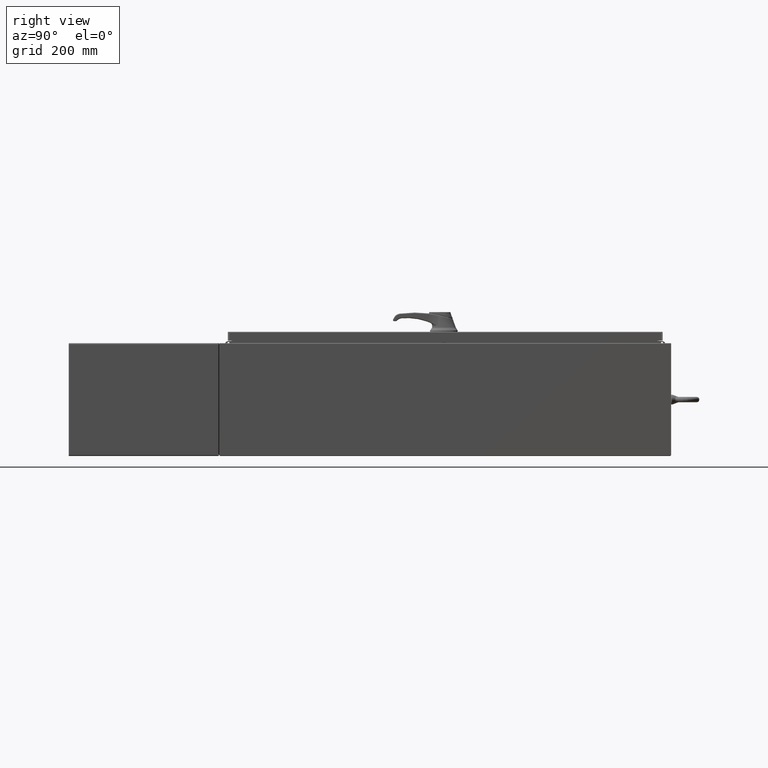
[diagram: clean part render]
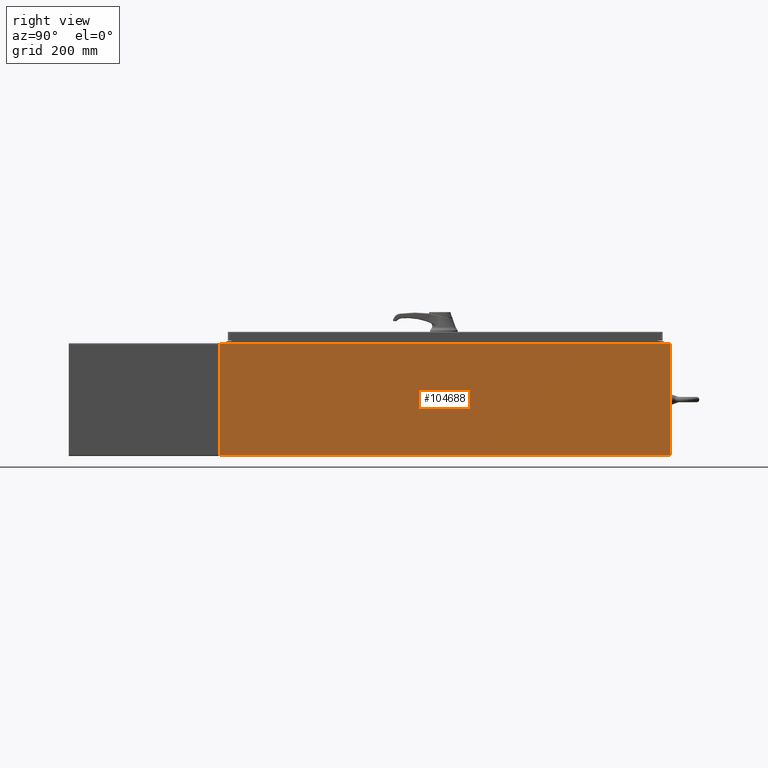
[diagram: same view with one face highlighted and labeled with its STEP entity id]
A machine part, right view. The second image highlights one B-rep face of the part: STEP entity #104688.
In plain terms, the highlighted planar face has unit normal (-1, 0, 0).
Its self-contained STEP definition (entity closure, byte-faithful):
#4818 = LINE ( 'NONE', #47509, #74518 ) ;
#9360 = LINE ( 'NONE', #83940, #90793 ) ;
#10365 = ORIENTED_EDGE ( 'NONE', *, *, #83419, .T. ) ;
#14487 = ORIENTED_EDGE ( 'NONE', *, *, #109775, .T. ) ;
#20336 = DIRECTION ( 'NONE',  ( 3.482016343714355500E-015, 0.0000000000000000000, 1.000000000000000000 ) ) ;
#20563 = EDGE_CURVE ( 'NONE', #38033, #105895, #87336, .T. ) ;
#26644 = CARTESIAN_POINT ( 'NONE',  ( 17.99999999999999600, -23.92529999999998900, 0.01299999999999897800 ) ) ;
#26656 = DIRECTION ( 'NONE',  ( -0.0000000000000000000, -1.000000000000000000, -0.0000000000000000000 ) ) ;
#28428 = CARTESIAN_POINT ( 'NONE',  ( 17.99999999999999600, 0.0000000000000000000, -6.293710784286996200E-014 ) ) ;
#28890 = DIRECTION ( 'NONE',  ( -1.000000000000000000, 0.0000000000000000000, 3.482016343714355100E-015 ) ) ;
#34466 = VERTEX_POINT ( 'NONE', #109748 ) ;
#38033 = VERTEX_POINT ( 'NONE', #42979 ) ;
#42979 = CARTESIAN_POINT ( 'NONE',  ( 17.99999999999999600, 23.92529999999998600, 0.01300000000000203200 ) ) ;
#44204 = AXIS2_PLACEMENT_3D ( 'NONE', #28428, #28890, #103115 ) ;
#45010 = ORIENTED_EDGE ( 'NONE', *, *, #70093, .T. ) ;
#47509 = CARTESIAN_POINT ( 'NONE',  ( 18.00000000000003900, 23.92529999999998900, 11.83760000000000200 ) ) ;
#52417 = DIRECTION ( 'NONE',  ( -3.482016343714355500E-015, 0.0000000000000000000, -1.000000000000000000 ) ) ;
#58137 = VECTOR ( 'NONE', #52417, 39.37007874015748100 ) ;
#59055 = VECTOR ( 'NONE', #77587, 39.37007874015748100 ) ;
#62618 = CARTESIAN_POINT ( 'NONE',  ( 17.99999999999999600, -23.92529999999998900, -6.293710784286996200E-014 ) ) ;
#66907 = CARTESIAN_POINT ( 'NONE',  ( 17.99999999999999600, -23.92529999999998900, 0.01299999999999984700 ) ) ;
#70093 = EDGE_CURVE ( 'NONE', #70878, #105895, #111323, .T. ) ;
#70878 = VERTEX_POINT ( 'NONE', #88910 ) ;
#74518 = VECTOR ( 'NONE', #26656, 39.37007874015748100 ) ;
#77587 = DIRECTION ( 'NONE',  ( -1.590339826456887700E-031, -1.000000000000000000, -4.567295697298285000E-017 ) ) ;
#83419 = EDGE_CURVE ( 'NONE', #38033, #34466, #9360, .T. ) ;
#83940 = CARTESIAN_POINT ( 'NONE',  ( 17.99999999999999600, 23.92529999999998900, -6.293710784286996200E-014 ) ) ;
#87336 = LINE ( 'NONE', #66907, #59055 ) ;
#88910 = CARTESIAN_POINT ( 'NONE',  ( 18.00000000000003900, -23.92529999999998900, 11.83760000000000200 ) ) ;
#90793 = VECTOR ( 'NONE', #20336, 39.37007874015748100 ) ;
#92473 = PLANE ( 'NONE',  #44204 ) ;
#103115 = DIRECTION ( 'NONE',  ( 3.482016343714355100E-015, 0.0000000000000000000, 1.000000000000000000 ) ) ;
#104688 = ADVANCED_FACE ( 'NONE', ( #128500 ), #92473, .F. ) ;
#105895 = VERTEX_POINT ( 'NONE', #26644 ) ;
#109748 = CARTESIAN_POINT ( 'NONE',  ( 18.00000000000003900, 23.92529999999998600, 11.83760000000000200 ) ) ;
#109775 = EDGE_CURVE ( 'NONE', #34466, #70878, #4818, .T. ) ;
#111323 = LINE ( 'NONE', #62618, #58137 ) ;
#119638 = EDGE_LOOP ( 'NONE', ( #14487, #45010, #128404, #10365 ) ) ;
#128404 = ORIENTED_EDGE ( 'NONE', *, *, #20563, .F. ) ;
#128500 = FACE_OUTER_BOUND ( 'NONE', #119638, .T. ) ;